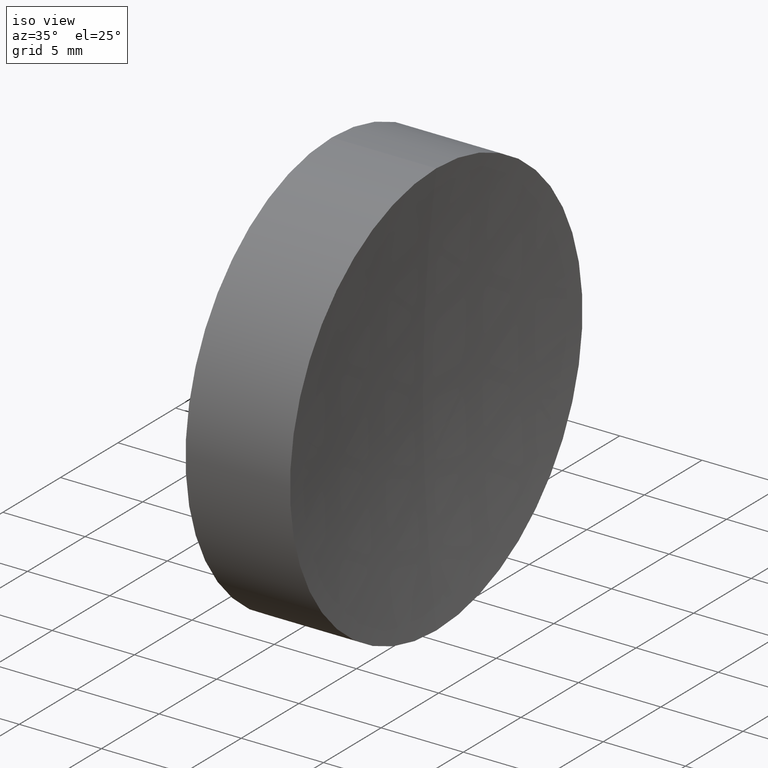
[diagram: clean part render]
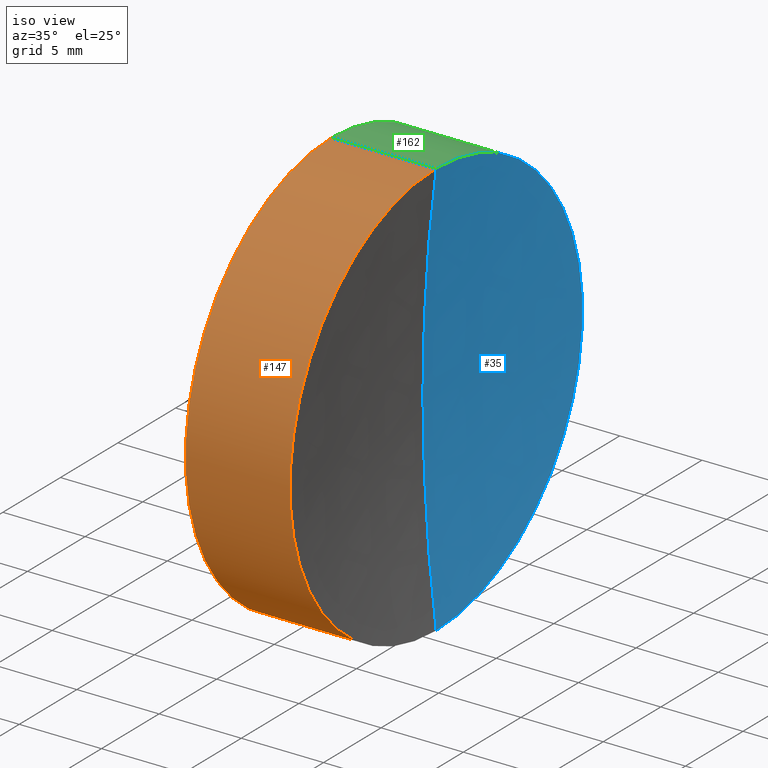
[diagram: same view with three faces highlighted in distinct colors, each labeled with its STEP entity id]
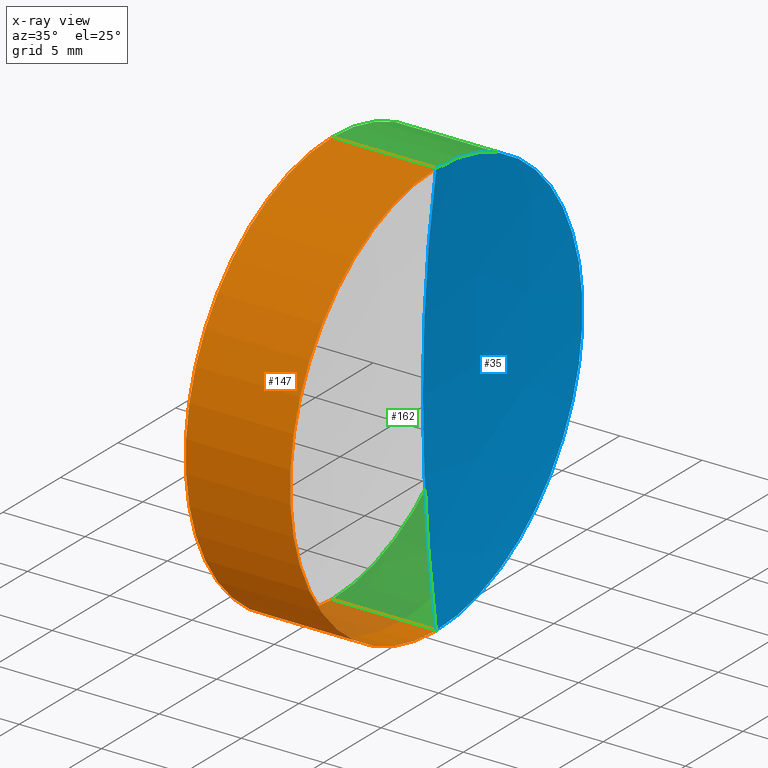
[diagram: x-ray of the same camera — body ghosted, the three highlighted faces saturated]
A machine part, iso view with three faces highlighted in distinct colors.
The next image is the same camera in x-ray (body ghosted, the three faces saturated) — at least one of them is partly hidden behind the body in this view.
Their STEP definitions:

[orange] entity #147 — the highlighted cylindrical surface (partial cylindrical patch) has radius 12.7 mm, axis along (-1, -0, -0).
#1 = CARTESIAN_POINT ( 'NONE',  ( 6.349728299595833300, 0.0000000000000000000, 0.0000000000000000000 ) ) ;
#2 = CARTESIAN_POINT ( 'NONE',  ( 0.0000000000000000000, 0.0000000000000000000, 12.69999999999999900 ) ) ;
#4 = CARTESIAN_POINT ( 'NONE',  ( 0.0000000000000000000, 0.0000000000000000000, 0.0000000000000000000 ) ) ;
#5 = EDGE_CURVE ( 'NONE', #145, #62, #12, .T. ) ;
#11 = CARTESIAN_POINT ( 'NONE',  ( 0.0000000000000000000, 0.0000000000000000000, 0.0000000000000000000 ) ) ;
#12 = CIRCLE ( 'NONE', #80, 12.69999999999999900 ) ;
#13 = DIRECTION ( 'NONE',  ( -1.000000000000000000, -0.0000000000000000000, -0.0000000000000000000 ) ) ;
#21 = VECTOR ( 'NONE', #156, 1000.000000000000000 ) ;
#22 = EDGE_CURVE ( 'NONE', #100, #62, #53, .T. ) ;
#24 = DIRECTION ( 'NONE',  ( -1.000000000000000000, -0.0000000000000000000, -0.0000000000000000000 ) ) ;
#32 = ORIENTED_EDGE ( 'NONE', *, *, #5, .F. ) ;
#49 = AXIS2_PLACEMENT_3D ( 'NONE', #1, #77, #153 ) ;
#51 = AXIS2_PLACEMENT_3D ( 'NONE', #11, #101, #129 ) ;
#52 = EDGE_LOOP ( 'NONE', ( #95, #111, #87, #32 ) ) ;
#53 = LINE ( 'NONE', #128, #21 ) ;
#62 = VERTEX_POINT ( 'NONE', #2 ) ;
#63 = CIRCLE ( 'NONE', #49, 12.70000000000002400 ) ;
#66 = CARTESIAN_POINT ( 'NONE',  ( 0.0000000000000000000, 1.555301434917140000E-015, -12.70000000000001200 ) ) ;
#68 = EDGE_CURVE ( 'NONE', #149, #100, #63, .T. ) ;
#70 = CARTESIAN_POINT ( 'NONE',  ( 6.349728299595833300, 1.555301434917139200E-015, -12.70000000000000600 ) ) ;
#77 = DIRECTION ( 'NONE',  ( -1.000000000000000000, -0.0000000000000000000, -0.0000000000000000000 ) ) ;
#79 = CYLINDRICAL_SURFACE ( 'NONE', #51, 12.70000000000001200 ) ;
#80 = AXIS2_PLACEMENT_3D ( 'NONE', #4, #13, #143 ) ;
#87 = ORIENTED_EDGE ( 'NONE', *, *, #22, .T. ) ;
#88 = CARTESIAN_POINT ( 'NONE',  ( 0.0000000000000000000, 1.555301434917139200E-015, -12.69999999999999900 ) ) ;
#90 = CARTESIAN_POINT ( 'NONE',  ( 6.349728299595833300, 0.0000000000000000000, 12.70000000000000600 ) ) ;
#95 = ORIENTED_EDGE ( 'NONE', *, *, #103, .F. ) ;
#96 = VECTOR ( 'NONE', #24, 1000.000000000000000 ) ;
#100 = VERTEX_POINT ( 'NONE', #90 ) ;
#101 = DIRECTION ( 'NONE',  ( -1.000000000000000000, -0.0000000000000000000, -0.0000000000000000000 ) ) ;
#103 = EDGE_CURVE ( 'NONE', #149, #145, #161, .T. ) ;
#104 = FACE_OUTER_BOUND ( 'NONE', #52, .T. ) ;
#111 = ORIENTED_EDGE ( 'NONE', *, *, #68, .T. ) ;
#128 = CARTESIAN_POINT ( 'NONE',  ( 0.0000000000000000000, 0.0000000000000000000, 12.70000000000001200 ) ) ;
#129 = DIRECTION ( 'NONE',  ( 0.0000000000000000000, 0.0000000000000000000, 1.000000000000000000 ) ) ;
#143 = DIRECTION ( 'NONE',  ( 0.0000000000000000000, 0.0000000000000000000, 1.000000000000000000 ) ) ;
#145 = VERTEX_POINT ( 'NONE', #88 ) ;
#147 = ADVANCED_FACE ( 'NONE', ( #104 ), #79, .T. ) ;
#149 = VERTEX_POINT ( 'NONE', #70 ) ;
#153 = DIRECTION ( 'NONE',  ( 0.0000000000000000000, 0.0000000000000000000, 1.000000000000000000 ) ) ;
#156 = DIRECTION ( 'NONE',  ( -1.000000000000000000, -0.0000000000000000000, -0.0000000000000000000 ) ) ;
#161 = LINE ( 'NONE', #66, #96 ) ;

[blue] entity #35 — the highlighted spherical surface has radius 100 mm.
#6 = DIRECTION ( 'NONE',  ( -0.0000000000000000000, 1.000000000000000000, 1.224646799147353200E-016 ) ) ;
#7 = CARTESIAN_POINT ( 'NONE',  ( 105.5400000000000100, 0.0000000000000000000, 0.0000000000000000000 ) ) ;
#8 = CIRCLE ( 'NONE', #31, 100.0000000000000000 ) ;
#14 = ORIENTED_EDGE ( 'NONE', *, *, #166, .F. ) ;
#20 = EDGE_CURVE ( 'NONE', #100, #149, #121, .T. ) ;
#27 = DIRECTION ( 'NONE',  ( 0.0000000000000000000, 0.0000000000000000000, 1.000000000000000000 ) ) ;
#29 = DIRECTION ( 'NONE',  ( 0.0000000000000000000, -1.000000000000000000, 0.0000000000000000000 ) ) ;
#31 = AXIS2_PLACEMENT_3D ( 'NONE', #94, #6, #82 ) ;
#35 = ADVANCED_FACE ( 'NONE', ( #60 ), #154, .F. ) ;
#39 = CARTESIAN_POINT ( 'NONE',  ( 6.349728299595833300, 0.0000000000000000000, 0.0000000000000000000 ) ) ;
#41 = ORIENTED_EDGE ( 'NONE', *, *, #20, .F. ) ;
#48 = EDGE_LOOP ( 'NONE', ( #14, #41, #74 ) ) ;
#54 = CARTESIAN_POINT ( 'NONE',  ( 105.5400000000000100, 0.0000000000000000000, 0.0000000000000000000 ) ) ;
#59 = AXIS2_PLACEMENT_3D ( 'NONE', #54, #102, #78 ) ;
#60 = FACE_OUTER_BOUND ( 'NONE', #48, .T. ) ;
#70 = CARTESIAN_POINT ( 'NONE',  ( 6.349728299595833300, 1.555301434917139200E-015, -12.70000000000000600 ) ) ;
#74 = ORIENTED_EDGE ( 'NONE', *, *, #108, .T. ) ;
#76 = VERTEX_POINT ( 'NONE', #112 ) ;
#78 = DIRECTION ( 'NONE',  ( 0.0000000000000000000, 0.0000000000000000000, 1.000000000000000000 ) ) ;
#82 = DIRECTION ( 'NONE',  ( 0.0000000000000000000, -1.224646799147353200E-016, 1.000000000000000000 ) ) ;
#90 = CARTESIAN_POINT ( 'NONE',  ( 6.349728299595833300, 0.0000000000000000000, 12.70000000000000600 ) ) ;
#94 = CARTESIAN_POINT ( 'NONE',  ( 105.5400000000000100, 0.0000000000000000000, 0.0000000000000000000 ) ) ;
#100 = VERTEX_POINT ( 'NONE', #90 ) ;
#102 = DIRECTION ( 'NONE',  ( 0.0000000000000000000, 1.000000000000000000, 0.0000000000000000000 ) ) ;
#108 = EDGE_CURVE ( 'NONE', #100, #76, #110, .T. ) ;
#110 = CIRCLE ( 'NONE', #117, 100.0000000000000000 ) ;
#112 = CARTESIAN_POINT ( 'NONE',  ( 5.540000000000003600, 0.0000000000000000000, 6.123233995736766100E-015 ) ) ;
#114 = DIRECTION ( 'NONE',  ( -1.000000000000000000, -0.0000000000000000000, -0.0000000000000000000 ) ) ;
#115 = DIRECTION ( 'NONE',  ( 0.0000000000000000000, 0.0000000000000000000, -1.000000000000000000 ) ) ;
#117 = AXIS2_PLACEMENT_3D ( 'NONE', #7, #29, #115 ) ;
#121 = CIRCLE ( 'NONE', #123, 12.70000000000002400 ) ;
#123 = AXIS2_PLACEMENT_3D ( 'NONE', #39, #114, #27 ) ;
#149 = VERTEX_POINT ( 'NONE', #70 ) ;
#154 = SPHERICAL_SURFACE ( 'NONE', #59, 100.0000000000000000 ) ;
#166 = EDGE_CURVE ( 'NONE', #149, #76, #8, .T. ) ;

[green] entity #162 — the highlighted cylindrical surface (partial cylindrical patch) has radius 12.7 mm, axis along (-1, -0, -0).
#2 = CARTESIAN_POINT ( 'NONE',  ( 0.0000000000000000000, 0.0000000000000000000, 12.69999999999999900 ) ) ;
#19 = EDGE_LOOP ( 'NONE', ( #138, #137, #65, #81 ) ) ;
#20 = EDGE_CURVE ( 'NONE', #100, #149, #121, .T. ) ;
#21 = VECTOR ( 'NONE', #156, 1000.000000000000000 ) ;
#22 = EDGE_CURVE ( 'NONE', #100, #62, #53, .T. ) ;
#24 = DIRECTION ( 'NONE',  ( -1.000000000000000000, -0.0000000000000000000, -0.0000000000000000000 ) ) ;
#27 = DIRECTION ( 'NONE',  ( 0.0000000000000000000, 0.0000000000000000000, 1.000000000000000000 ) ) ;
#37 = AXIS2_PLACEMENT_3D ( 'NONE', #120, #91, #126 ) ;
#39 = CARTESIAN_POINT ( 'NONE',  ( 6.349728299595833300, 0.0000000000000000000, 0.0000000000000000000 ) ) ;
#40 = CIRCLE ( 'NONE', #157, 12.69999999999999900 ) ;
#43 = DIRECTION ( 'NONE',  ( -1.000000000000000000, -0.0000000000000000000, -0.0000000000000000000 ) ) ;
#47 = CYLINDRICAL_SURFACE ( 'NONE', #37, 12.70000000000001200 ) ;
#53 = LINE ( 'NONE', #128, #21 ) ;
#62 = VERTEX_POINT ( 'NONE', #2 ) ;
#65 = ORIENTED_EDGE ( 'NONE', *, *, #164, .F. ) ;
#66 = CARTESIAN_POINT ( 'NONE',  ( 0.0000000000000000000, 1.555301434917140000E-015, -12.70000000000001200 ) ) ;
#70 = CARTESIAN_POINT ( 'NONE',  ( 6.349728299595833300, 1.555301434917139200E-015, -12.70000000000000600 ) ) ;
#81 = ORIENTED_EDGE ( 'NONE', *, *, #22, .F. ) ;
#88 = CARTESIAN_POINT ( 'NONE',  ( 0.0000000000000000000, 1.555301434917139200E-015, -12.69999999999999900 ) ) ;
#90 = CARTESIAN_POINT ( 'NONE',  ( 6.349728299595833300, 0.0000000000000000000, 12.70000000000000600 ) ) ;
#91 = DIRECTION ( 'NONE',  ( -1.000000000000000000, -0.0000000000000000000, -0.0000000000000000000 ) ) ;
#96 = VECTOR ( 'NONE', #24, 1000.000000000000000 ) ;
#100 = VERTEX_POINT ( 'NONE', #90 ) ;
#103 = EDGE_CURVE ( 'NONE', #149, #145, #161, .T. ) ;
#114 = DIRECTION ( 'NONE',  ( -1.000000000000000000, -0.0000000000000000000, -0.0000000000000000000 ) ) ;
#119 = DIRECTION ( 'NONE',  ( 0.0000000000000000000, 0.0000000000000000000, 1.000000000000000000 ) ) ;
#120 = CARTESIAN_POINT ( 'NONE',  ( 0.0000000000000000000, 0.0000000000000000000, 0.0000000000000000000 ) ) ;
#121 = CIRCLE ( 'NONE', #123, 12.70000000000002400 ) ;
#123 = AXIS2_PLACEMENT_3D ( 'NONE', #39, #114, #27 ) ;
#126 = DIRECTION ( 'NONE',  ( 0.0000000000000000000, 0.0000000000000000000, 1.000000000000000000 ) ) ;
#128 = CARTESIAN_POINT ( 'NONE',  ( 0.0000000000000000000, 0.0000000000000000000, 12.70000000000001200 ) ) ;
#133 = CARTESIAN_POINT ( 'NONE',  ( 0.0000000000000000000, 0.0000000000000000000, 0.0000000000000000000 ) ) ;
#137 = ORIENTED_EDGE ( 'NONE', *, *, #103, .T. ) ;
#138 = ORIENTED_EDGE ( 'NONE', *, *, #20, .T. ) ;
#145 = VERTEX_POINT ( 'NONE', #88 ) ;
#149 = VERTEX_POINT ( 'NONE', #70 ) ;
#152 = FACE_OUTER_BOUND ( 'NONE', #19, .T. ) ;
#156 = DIRECTION ( 'NONE',  ( -1.000000000000000000, -0.0000000000000000000, -0.0000000000000000000 ) ) ;
#157 = AXIS2_PLACEMENT_3D ( 'NONE', #133, #43, #119 ) ;
#161 = LINE ( 'NONE', #66, #96 ) ;
#162 = ADVANCED_FACE ( 'NONE', ( #152 ), #47, .T. ) ;
#164 = EDGE_CURVE ( 'NONE', #62, #145, #40, .T. ) ;